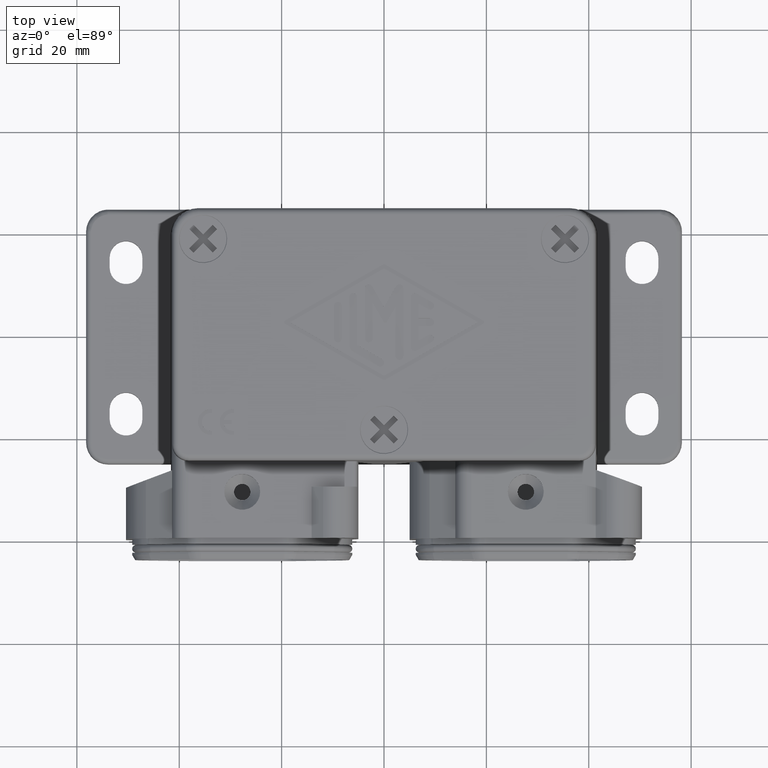
[diagram: clean part render]
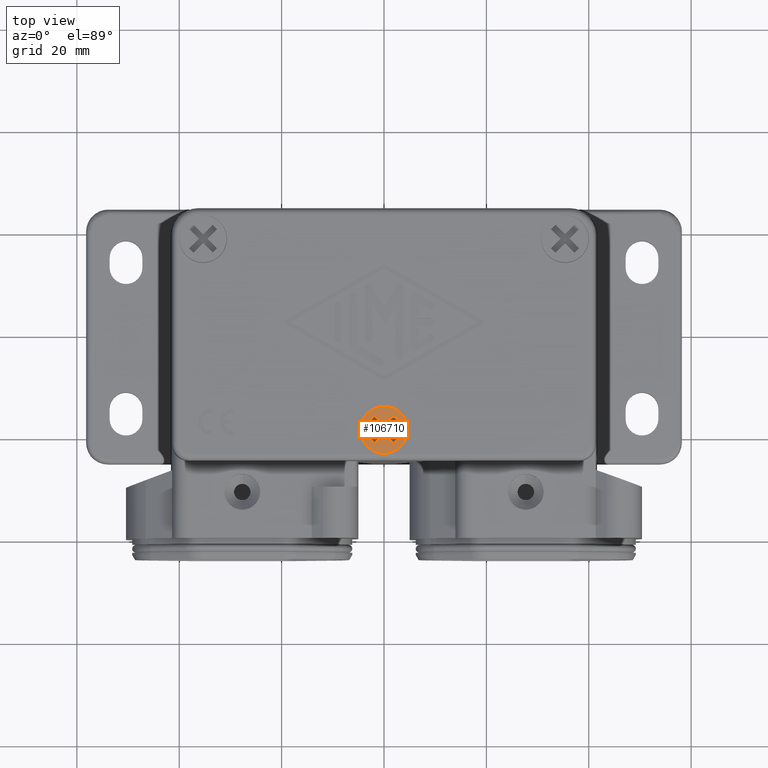
[diagram: same view with one face highlighted and labeled with its STEP entity id]
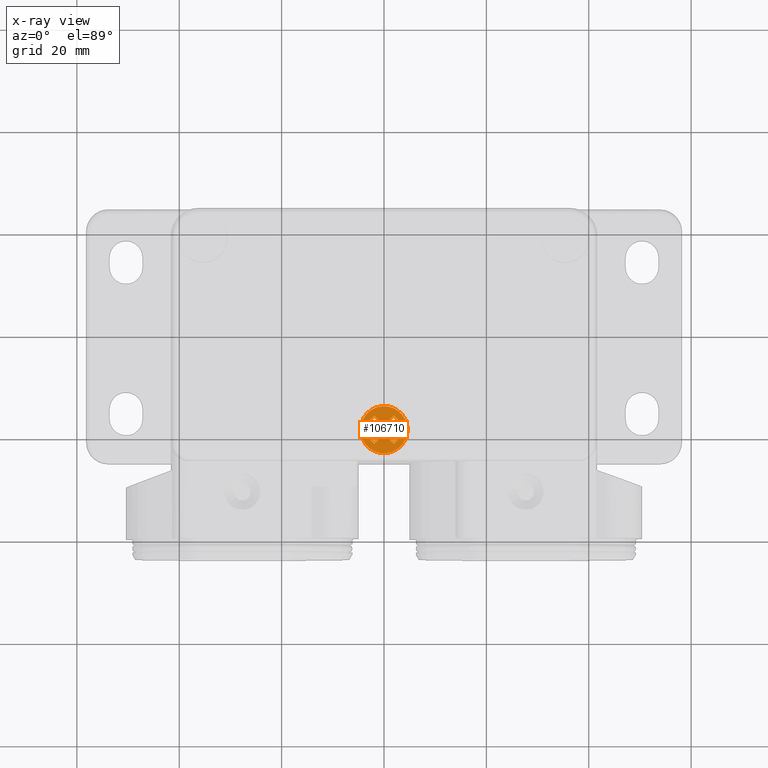
[diagram: x-ray of the same camera — body ghosted, the highlighted face saturated]
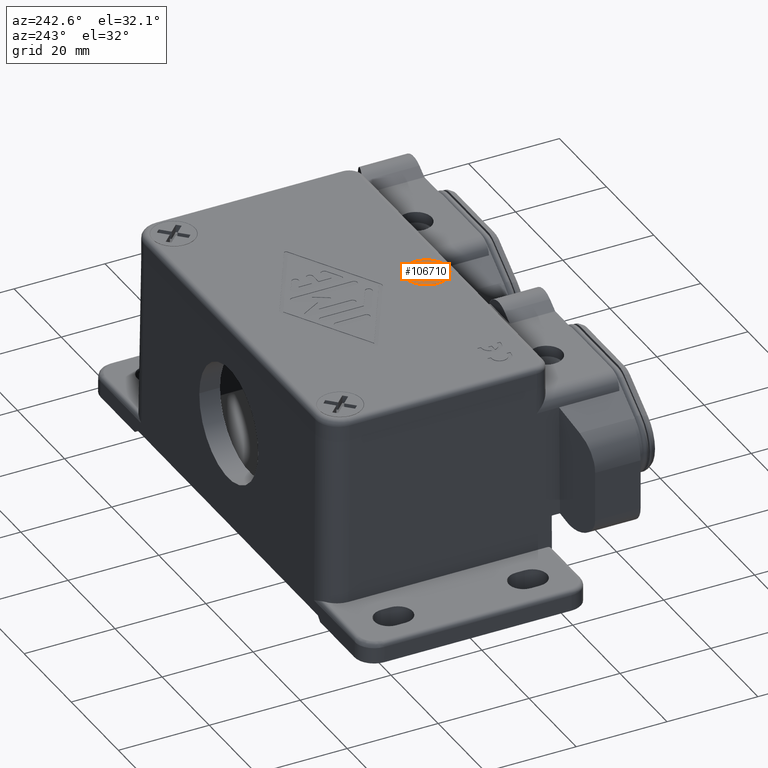
[diagram: same view with one face highlighted and labeled with its STEP entity id]
A machine part, top view. The second image highlights one B-rep face of the part: STEP entity #106710.
The next image is the same camera in x-ray: the body ghosted, the highlighted face saturated — about 0% of this face is hidden behind the body in this view.
A second angle (auxiliary view) of the same face is appended — the face is thin or edge-on in the first view.
In plain terms, the highlighted planar face has unit normal (0, 0, 1).
Its self-contained STEP definition (entity closure, byte-faithful):
#105290=CARTESIAN_POINT('',(-26.3785223459282,-29.3751039086253,
21.050000677173));
#105300=VERTEX_POINT('',#105290);
#105330=CARTESIAN_POINT('',(-27.800000520053,-25.0002439336676,
21.050000677173));
#105340=DIRECTION('',(0.,0.,1.));
#105350=DIRECTION('',(-0.951056516295154,-0.309016994374947,0.));
#105360=AXIS2_PLACEMENT_3D('',#105330,#105340,#105350);
#105370=CIRCLE('',#105360,4.6);
#105380=CARTESIAN_POINT('',(-29.2214786941777,-20.6253839587099,
21.050000677173));
#105390=VERTEX_POINT('',#105380);
#105400=EDGE_CURVE('',#105300,#105390,#105370,.T.);
#105590=CARTESIAN_POINT('',(-25.2206096757259,-24.1621490440629,
21.050000677173));
#105600=DIRECTION('',(0.,0.,1.));
#105610=DIRECTION('',(-0.951056516295154,-0.309016994374947,0.));
#105620=AXIS2_PLACEMENT_3D('',#105590,#105600,#105610);
#105630=PLANE('',#105620);
#105640=CARTESIAN_POINT('',(-26.5484066906431,-22.9001219668338,
21.050000677173));
#105650=DIRECTION('',(-0.707106781186547,-0.707106781186548,0.));
#105660=VECTOR('',#105650,1.);
#105670=LINE('',#105640,#105660);
#105680=CARTESIAN_POINT('',(-28.6485286574769,-25.0002439336675,
21.050000677173));
#105690=VERTEX_POINT('',#105680);
#105700=CARTESIAN_POINT('',(-30.5223616276212,-26.8740769038118,
21.050000677173));
#105710=VERTEX_POINT('',#105700);
#105720=EDGE_CURVE('',#105690,#105710,#105670,.T.);
#105730=ORIENTED_EDGE('',*,*,#105720,.F.);
#105740=CARTESIAN_POINT('',(-31.2690364856143,-26.1274020458188,
21.050000677173));
#105750=DIRECTION('',(0.707106781186547,-0.707106781186548,0.));
#105760=VECTOR('',#105750,1.);
#105770=LINE('',#105740,#105760);
#105780=CARTESIAN_POINT('',(-29.6738334901974,-27.7226050412357,
21.050000677173));
#105790=VERTEX_POINT('',#105780);
#105800=EDGE_CURVE('',#105710,#105790,#105770,.T.);
#105810=ORIENTED_EDGE('',*,*,#105800,.F.);
#105820=CARTESIAN_POINT('',(-24.8513504157954,-22.9001219668338,
21.050000677173));
#105830=DIRECTION('',(0.707106781186547,0.707106781186548,0.));
#105840=VECTOR('',#105830,1.);
#105850=LINE('',#105820,#105840);
#105860=CARTESIAN_POINT('',(-27.800000520053,-25.8487720710914,
21.050000677173));
#105870=VERTEX_POINT('',#105860);
#105880=EDGE_CURVE('',#105790,#105870,#105850,.T.);
#105890=ORIENTED_EDGE('',*,*,#105880,.F.);
#105900=CARTESIAN_POINT('',(-30.7486506243106,-22.9001219668338,
21.050000677173));
#105910=DIRECTION('',(-0.707106781186547,0.707106781186548,0.));
#105920=VECTOR('',#105910,1.);
#105930=LINE('',#105900,#105920);
#105940=CARTESIAN_POINT('',(-25.9261675499087,-27.7226050412357,
21.050000677173));
#105950=VERTEX_POINT('',#105940);
#105960=EDGE_CURVE('',#105950,#105870,#105930,.T.);
#105970=ORIENTED_EDGE('',*,*,#105960,.T.);
#105980=CARTESIAN_POINT('',(-26.6728424079018,-28.4692798992288,
21.050000677173));
#105990=DIRECTION('',(0.707106781186548,0.707106781186548,0.));
#106000=VECTOR('',#105990,1.);
#106010=LINE('',#105980,#106000);
#106020=CARTESIAN_POINT('',(-25.0776394124848,-26.8740769038119,
21.050000677173));
#106030=VERTEX_POINT('',#106020);
#106040=EDGE_CURVE('',#105950,#106030,#106010,.T.);
#106050=ORIENTED_EDGE('',*,*,#106040,.F.);
#106060=CARTESIAN_POINT('',(-29.0515943494629,-22.9001219668338,
21.050000677173));
#106070=DIRECTION('',(0.707106781186547,-0.707106781186548,0.));
#106080=VECTOR('',#106070,1.);
#106090=LINE('',#106060,#106080);
#106100=CARTESIAN_POINT('',(-26.9514723826291,-25.0002439336675,
21.050000677173));
#106110=VERTEX_POINT('',#106100);
#106120=EDGE_CURVE('',#106110,#106030,#106090,.T.);
#106130=ORIENTED_EDGE('',*,*,#106120,.T.);
#106140=CARTESIAN_POINT('',(-24.8513504157954,-22.9001219668338,
21.050000677173));
#106150=DIRECTION('',(0.707106781186547,0.707106781186548,0.));
#106160=VECTOR('',#106150,1.);
#106170=LINE('',#106140,#106160);
#106180=CARTESIAN_POINT('',(-25.0776394124848,-23.1264109635231,
21.050000677173));
#106190=VERTEX_POINT('',#106180);
#106200=EDGE_CURVE('',#106110,#106190,#106170,.T.);
#106210=ORIENTED_EDGE('',*,*,#106200,.F.);
#106220=CARTESIAN_POINT('',(-24.3309645544916,-23.8730858215164,
21.050000677173));
#106230=DIRECTION('',(-0.707106781186547,0.707106781186548,0.));
#106240=VECTOR('',#106230,1.);
#106250=LINE('',#106220,#106240);
#106260=CARTESIAN_POINT('',(-25.9261675499087,-22.2778828260993,
21.050000677173));
#106270=VERTEX_POINT('',#106260);
#106280=EDGE_CURVE('',#106190,#106270,#106250,.T.);
#106290=ORIENTED_EDGE('',*,*,#106280,.F.);
#106300=CARTESIAN_POINT('',(-26.5484066906431,-22.9001219668338,
21.050000677173));
#106310=DIRECTION('',(-0.707106781186547,-0.707106781186548,0.));
#106320=VECTOR('',#106310,1.);
#106330=LINE('',#106300,#106320);
#106340=CARTESIAN_POINT('',(-27.800000520053,-24.1517157962436,
21.050000677173));
#106350=VERTEX_POINT('',#106340);
#106360=EDGE_CURVE('',#106270,#106350,#106330,.T.);
#106370=ORIENTED_EDGE('',*,*,#106360,.F.);
#106380=CARTESIAN_POINT('',(-29.0515943494629,-22.9001219668338,
21.050000677173));
#106390=DIRECTION('',(0.707106781186547,-0.707106781186548,0.));
#106400=VECTOR('',#106390,1.);
#106410=LINE('',#106380,#106400);
#106420=CARTESIAN_POINT('',(-29.6738334901974,-22.2778828260993,
21.050000677173));
#106430=VERTEX_POINT('',#106420);
#106440=EDGE_CURVE('',#106430,#106350,#106410,.T.);
#106450=ORIENTED_EDGE('',*,*,#106440,.T.);
#106460=CARTESIAN_POINT('',(-28.9271586322042,-21.5312079681062,
21.050000677173));
#106470=DIRECTION('',(-0.707106781186548,-0.707106781186548,0.));
#106480=VECTOR('',#106470,1.);
#106490=LINE('',#106460,#106480);
#106500=CARTESIAN_POINT('',(-30.5223616276212,-23.1264109635231,
21.050000677173));
#106510=VERTEX_POINT('',#106500);
#106520=EDGE_CURVE('',#106430,#106510,#106490,.T.);
#106530=ORIENTED_EDGE('',*,*,#106520,.F.);
#106540=CARTESIAN_POINT('',(-30.7486506243106,-22.9001219668338,
21.050000677173));
#106550=DIRECTION('',(-0.707106781186547,0.707106781186548,0.));
#106560=VECTOR('',#106550,1.);
#106570=LINE('',#106540,#106560);
#106580=EDGE_CURVE('',#105690,#106510,#106570,.T.);
#106590=ORIENTED_EDGE('',*,*,#106580,.T.);
#106600=EDGE_LOOP('',(#106590,#106530,#106450,#106370,#106290,#106210,
#106130,#106050,#105970,#105890,#105810,#105730));
#106610=FACE_BOUND('',#106600,.T.);
#106620=ORIENTED_EDGE('',*,*,#105400,.T.);
#106630=CARTESIAN_POINT('',(-31.3925248138413,-22.127306552077,
21.050000677173));
#106640=VERTEX_POINT('',#106630);
#106650=EDGE_CURVE('',#106640,#105300,#105370,.T.);
#106660=ORIENTED_EDGE('',*,*,#106650,.T.);
#106670=EDGE_CURVE('',#105390,#106640,#105370,.T.);
#106680=ORIENTED_EDGE('',*,*,#106670,.T.);
#106690=EDGE_LOOP('',(#106680,#106660,#106620));
#106700=FACE_OUTER_BOUND('',#106690,.T.);
#106710=ADVANCED_FACE('',(#106610,#106700),#105630,.T.);